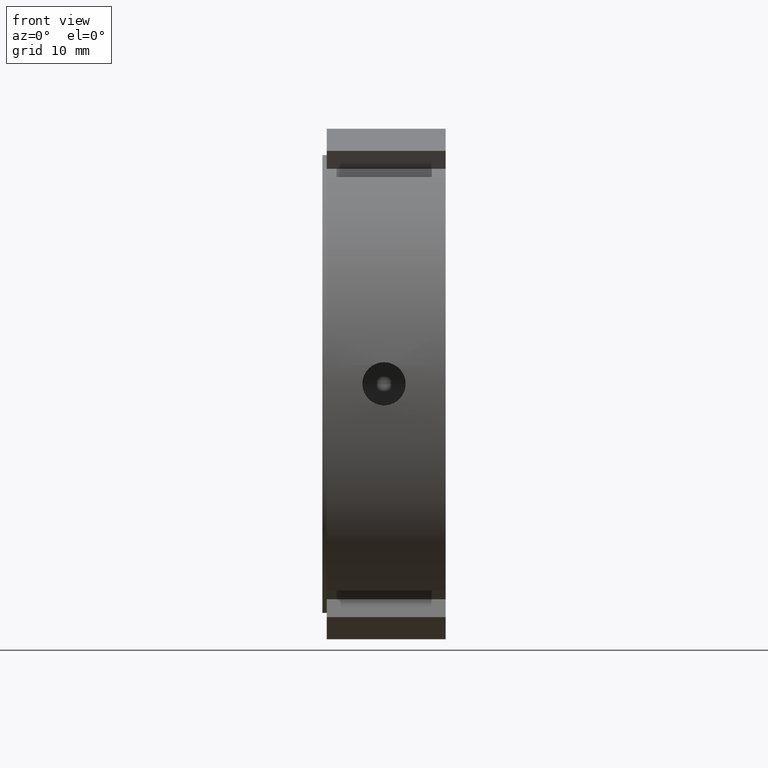
[diagram: clean part render]
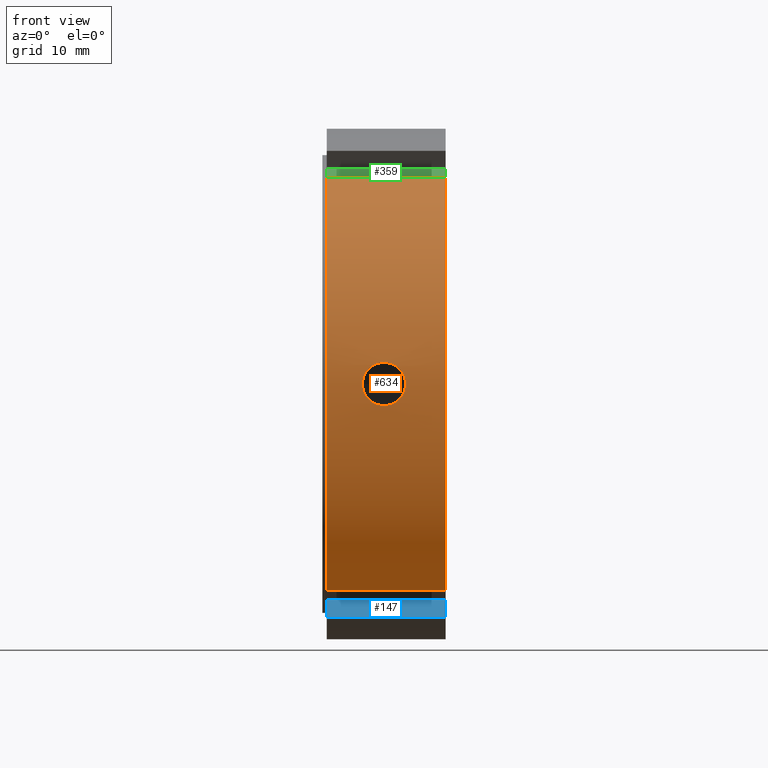
[diagram: same view with three faces highlighted in distinct colors, each labeled with its STEP entity id]
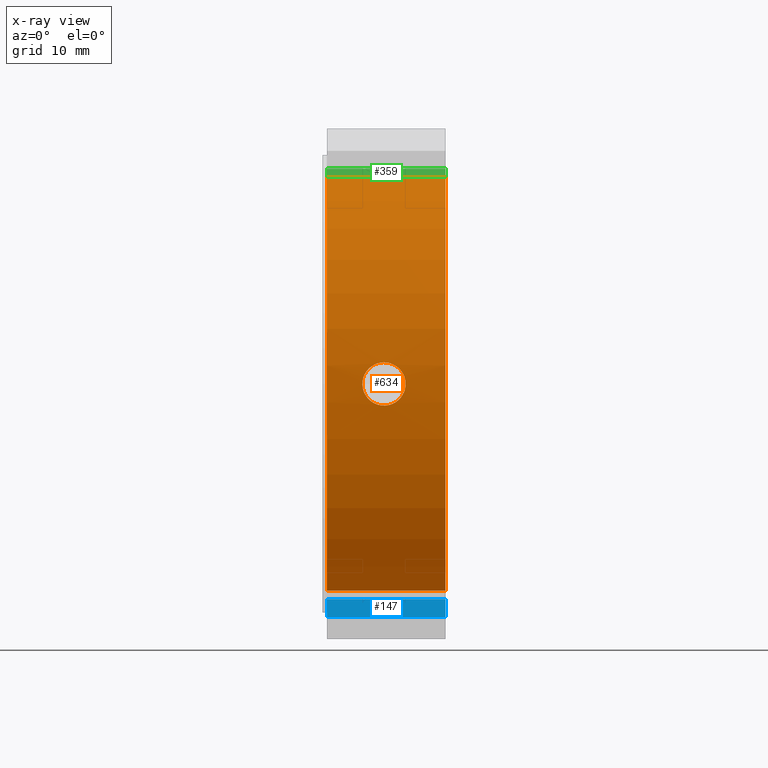
[diagram: x-ray of the same camera — body ghosted, the three highlighted faces saturated]
A machine part, front view with three faces highlighted in distinct colors.
The next image is the same camera in x-ray (body ghosted, the three faces saturated) — at least one of them is partly hidden behind the body in this view.
Their STEP definitions:

[orange] entity #634 — the highlighted cylindrical surface (partial cylindrical patch) has radius 29 mm, axis along (1, 0, 0).
#75=CARTESIAN_POINT('',(0.499999999999994,-17.020281313209288,-23.479991993593590));
#76=VERTEX_POINT('',#75);
#91=CARTESIAN_POINT('',(13.999999999999995,-17.020281313209288,-23.479991993593590));
#92=VERTEX_POINT('',#91);
#99=CARTESIAN_POINT('',(0.499999999999994,-17.020281313209288,-23.479991993593586));
#100=DIRECTION('',(1.0,0.0,0.0));
#101=VECTOR('',#100,13.500000000000000);
#102=LINE('',#99,#101);
#103=EDGE_CURVE('',#76,#92,#102,.T.);
#303=CARTESIAN_POINT('',(0.499999999999994,-17.020281313209267,23.479991993593600));
#304=VERTEX_POINT('',#303);
#313=CARTESIAN_POINT('',(13.999999999999995,-17.020281313209267,23.479991993593600));
#314=VERTEX_POINT('',#313);
#315=CARTESIAN_POINT('',(13.999999999999995,-17.020281313209267,23.479991993593600));
#316=DIRECTION('',(-1.0,0.0,0.0));
#317=VECTOR('',#316,13.500000000000000);
#318=LINE('',#315,#317);
#319=EDGE_CURVE('',#314,#304,#318,.T.);
#499=CARTESIAN_POINT('',(13.999999999999995,0.0,0.0));
#500=DIRECTION('',(1.0,0.0,0.0));
#501=DIRECTION('',(0.0,1.0,0.0));
#502=AXIS2_PLACEMENT_3D('',#499,#500,#501);
#503=CIRCLE('',#502,29.000000000000004);
#504=EDGE_CURVE('',#314,#92,#503,.T.);
#576=CARTESIAN_POINT('',(7.249999999999995,0.0,0.0));
#577=DIRECTION('',(1.0,0.0,0.0));
#578=DIRECTION('',(0.0,1.0,0.0));
#579=AXIS2_PLACEMENT_3D('',#576,#577,#578);
#580=CYLINDRICAL_SURFACE('',#579,29.000000000000004);
#581=ORIENTED_EDGE('',*,*,#103,.T.);
#582=ORIENTED_EDGE('',*,*,#504,.F.);
#583=ORIENTED_EDGE('',*,*,#319,.T.);
#584=CARTESIAN_POINT('',(0.499999999999994,0.0,0.0));
#585=DIRECTION('',(1.0,0.0,0.0));
#586=DIRECTION('',(0.0,1.0,0.0));
#587=AXIS2_PLACEMENT_3D('',#584,#585,#586);
#588=CIRCLE('',#587,29.0);
#589=EDGE_CURVE('',#304,#76,#588,.T.);
#590=ORIENTED_EDGE('',*,*,#589,.T.);
#591=EDGE_LOOP('',(#581,#582,#583,#590));
#592=FACE_OUTER_BOUND('',#591,.T.);
#593=CARTESIAN_POINT('',(6.999999999999994,-28.895601356434859,2.458500000000000));
#594=VERTEX_POINT('',#593);
#595=CARTESIAN_POINT('',(6.999999999999994,-28.895601356434859,2.458500000000000));
#596=CARTESIAN_POINT('',(7.308854109261286,-28.895601356434859,2.458500000000000));
#597=CARTESIAN_POINT('',(7.638193209310602,-28.901063191792002,2.396745066999606));
#598=CARTESIAN_POINT('',(8.243872746317134,-28.920777692611995,2.145800115898084));
#599=CARTESIAN_POINT('',(8.520225825376887,-28.934744277958998,1.956618217717363));
#600=CARTESIAN_POINT('',(8.956617835114848,-28.960951182407506,1.520226207979401));
#601=CARTESIAN_POINT('',(9.145800030290950,-28.974895838059354,1.243872960042270));
#602=CARTESIAN_POINT('',(9.396745207676927,-28.994560155929292,0.638192862668306));
#603=CARTESIAN_POINT('',(9.458499999999994,-29.000000000000004,0.308853567692012));
#604=CARTESIAN_POINT('',(9.458499999999994,-29.000000000000004,-0.308853567692012));
#605=CARTESIAN_POINT('',(9.396745207676926,-28.994560155929292,-0.638192862668306));
#606=CARTESIAN_POINT('',(9.145800030290950,-28.974895838059354,-1.243872960042270));
#607=CARTESIAN_POINT('',(8.956617835114848,-28.960951182407499,-1.520226207979400));
#608=CARTESIAN_POINT('',(8.520225825376887,-28.934744277958998,-1.956618217717363));
#609=CARTESIAN_POINT('',(8.243872746317134,-28.920777692611995,-2.145800115898084));
#610=CARTESIAN_POINT('',(7.638193209310602,-28.901063191792002,-2.396745066999606));
#611=CARTESIAN_POINT('',(7.308854109261286,-28.895601356434859,-2.458500000000000));
#612=CARTESIAN_POINT('',(6.691145890738701,-28.895601356434859,-2.458500000000000));
#613=CARTESIAN_POINT('',(6.361806790689386,-28.901063191792002,-2.396745066999606));
#614=CARTESIAN_POINT('',(5.756127253682855,-28.920777692611995,-2.145800115898084));
#615=CARTESIAN_POINT('',(5.479774174623103,-28.934744277958998,-1.956618217717363));
#616=CARTESIAN_POINT('',(5.043382164885141,-28.960951182407506,-1.520226207979401));
#617=CARTESIAN_POINT('',(4.854199969709037,-28.974895838059354,-1.243872960042271));
#618=CARTESIAN_POINT('',(4.603254792323060,-28.994560155929300,-0.638192862668308));
#619=CARTESIAN_POINT('',(4.541499999999994,-29.000000000000004,-0.308853567692013));
#620=CARTESIAN_POINT('',(4.541499999999994,-29.000000000000004,0.308853567692011));
#621=CARTESIAN_POINT('',(4.603254792323061,-28.994560155929292,0.638192862668306));
#622=CARTESIAN_POINT('',(4.854199969709037,-28.974895838059354,1.243872960042270));
#623=CARTESIAN_POINT('',(5.043382164885141,-28.960951182407499,1.520226207979400));
#624=CARTESIAN_POINT('',(5.479774174623103,-28.934744277959005,1.956618217717362));
#625=CARTESIAN_POINT('',(5.756127253682855,-28.920777692611995,2.145800115898084));
#626=CARTESIAN_POINT('',(6.361806790689386,-28.901063191792002,2.396745066999606));
#627=CARTESIAN_POINT('',(6.691145890738701,-28.895601356434859,2.458500000000000));
#628=CARTESIAN_POINT('',(6.999999999999994,-28.895601356434859,2.458500000000000));
#629=B_SPLINE_CURVE_WITH_KNOTS('',3,(#595,#596,#597,#598,#599,#600,#601,#602,#603,#604,#605,#606,#607,#608,#609,#610,#611,#612,#613,#614,#615,#616,#617,#618,#619,#620,#621,#622,#623,#624,#625,#626,#627,#628),.UNSPECIFIED.,.T.,.U.,(4,2,2,2,2,2,2,2,2,2,2,2,2,2,2,2,4),(0.0,0.092656232778388,0.185312465556775,0.277968535864379,0.370624606171982,0.463280676479586,0.555936746787190,0.648592979565577,0.741249212343965,0.833905445122353,0.926561677900740,1.019217748208344,1.111873818515947,1.204529888823551,1.297185959131154,1.389842191909542,1.482498424687930),.UNSPECIFIED.);
#630=EDGE_CURVE('',#594,#594,#629,.T.);
#631=ORIENTED_EDGE('',*,*,#630,.T.);
#632=EDGE_LOOP('',(#631));
#633=FACE_BOUND('',#632,.T.);
#634=ADVANCED_FACE('',(#592,#633),#580,.T.);

[blue] entity #147 — the highlighted planar face has unit normal (0, 0.866, -0.5).
#108=CARTESIAN_POINT('',(13.999999999999995,-11.901923788646705,-26.614736709748719));
#109=DIRECTION('',(0.0,0.866025403784438,-0.500000000000001));
#110=DIRECTION('',(1.0,0.0,0.0));
#111=AXIS2_PLACEMENT_3D('',#108,#109,#110);
#112=PLANE('',#111);
#113=CARTESIAN_POINT('',(0.499999999999994,-11.824128890502656,-26.479991993593586));
#114=VERTEX_POINT('',#113);
#115=CARTESIAN_POINT('',(0.499999999999994,-10.651923788646700,-24.449673200287624));
#116=VERTEX_POINT('',#115);
#117=CARTESIAN_POINT('',(0.499999999999992,-11.824128890502664,-26.479991993593593));
#118=DIRECTION('',(0.0,0.500000000000000,0.866025403784438));
#119=VECTOR('',#118,2.344410203711912);
#120=LINE('',#117,#119);
#121=EDGE_CURVE('',#114,#116,#120,.T.);
#122=ORIENTED_EDGE('',*,*,#121,.F.);
#123=CARTESIAN_POINT('',(13.999999999999995,-11.824128890502656,-26.479991993593586));
#124=VERTEX_POINT('',#123);
#125=CARTESIAN_POINT('',(13.999999999999995,-11.824128890502656,-26.479991993593586));
#126=DIRECTION('',(-1.0,0.0,0.0));
#127=VECTOR('',#126,13.500000000000000);
#128=LINE('',#125,#127);
#129=EDGE_CURVE('',#124,#114,#128,.T.);
#130=ORIENTED_EDGE('',*,*,#129,.F.);
#131=CARTESIAN_POINT('',(13.999999999999995,-10.651923788646700,-24.449673200287624));
#132=VERTEX_POINT('',#131);
#133=CARTESIAN_POINT('',(13.999999999999995,-10.651923788646707,-24.449673200287624));
#134=DIRECTION('',(0.0,-0.500000000000000,-0.866025403784439));
#135=VECTOR('',#134,2.344410203711916);
#136=LINE('',#133,#135);
#137=EDGE_CURVE('',#132,#124,#136,.T.);
#138=ORIENTED_EDGE('',*,*,#137,.F.);
#139=CARTESIAN_POINT('',(13.999999999999995,-10.651923788646700,-24.449673200287624));
#140=DIRECTION('',(-1.0,0.0,0.0));
#141=VECTOR('',#140,13.500000000000000);
#142=LINE('',#139,#141);
#143=EDGE_CURVE('',#132,#116,#142,.T.);
#144=ORIENTED_EDGE('',*,*,#143,.T.);
#145=EDGE_LOOP('',(#122,#130,#138,#144));
#146=FACE_OUTER_BOUND('',#145,.T.);
#147=ADVANCED_FACE('',(#146),#112,.F.);

[green] entity #359 — the highlighted planar face has unit normal (0, 0.5, -0.866).
#263=CARTESIAN_POINT('',(0.499999999999994,-10.651923788646682,24.449673200287631));
#264=VERTEX_POINT('',#263);
#273=CARTESIAN_POINT('',(13.999999999999995,-10.651923788646682,24.449673200287631));
#274=VERTEX_POINT('',#273);
#275=CARTESIAN_POINT('',(13.999999999999995,-10.651923788646682,24.449673200287631));
#276=DIRECTION('',(-1.0,0.0,0.0));
#277=VECTOR('',#276,13.500000000000000);
#278=LINE('',#275,#277);
#279=EDGE_CURVE('',#274,#264,#278,.T.);
#305=CARTESIAN_POINT('',(0.499999999999994,-15.848076211353312,21.449673200287634));
#306=VERTEX_POINT('',#305);
#321=CARTESIAN_POINT('',(13.999999999999995,-15.848076211353312,21.449673200287634));
#322=VERTEX_POINT('',#321);
#329=CARTESIAN_POINT('',(13.999999999999995,-15.848076211353312,21.449673200287634));
#330=DIRECTION('',(-1.0,0.0,0.0));
#331=VECTOR('',#330,13.500000000000000);
#332=LINE('',#329,#331);
#333=EDGE_CURVE('',#322,#306,#332,.T.);
#338=CARTESIAN_POINT('',(13.999999999999995,-15.848076211353312,21.449673200287634));
#339=DIRECTION('',(0.0,0.500000000000000,-0.866025403784439));
#340=DIRECTION('',(0.0,0.866025403784439,0.500000000000000));
#341=AXIS2_PLACEMENT_3D('',#338,#339,#340);
#342=PLANE('',#341);
#343=CARTESIAN_POINT('',(0.499999999999993,-15.848076211353314,21.449673200287634));
#344=DIRECTION('',(0.0,0.866025403784439,0.500000000000000));
#345=VECTOR('',#344,5.999999999999996);
#346=LINE('',#343,#345);
#347=EDGE_CURVE('',#306,#264,#346,.T.);
#348=ORIENTED_EDGE('',*,*,#347,.F.);
#349=ORIENTED_EDGE('',*,*,#333,.F.);
#350=CARTESIAN_POINT('',(13.999999999999995,-10.651923788646684,24.449673200287631));
#351=DIRECTION('',(0.0,-0.866025403784439,-0.500000000000000));
#352=VECTOR('',#351,5.999999999999998);
#353=LINE('',#350,#352);
#354=EDGE_CURVE('',#274,#322,#353,.T.);
#355=ORIENTED_EDGE('',*,*,#354,.F.);
#356=ORIENTED_EDGE('',*,*,#279,.T.);
#357=EDGE_LOOP('',(#348,#349,#355,#356));
#358=FACE_OUTER_BOUND('',#357,.T.);
#359=ADVANCED_FACE('',(#358),#342,.F.);